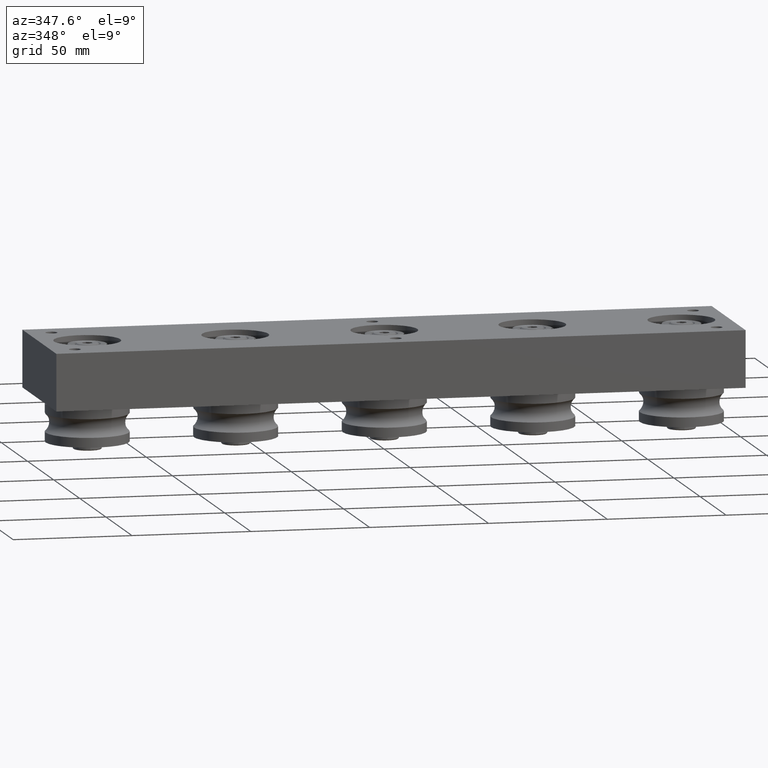
[diagram: clean part render]
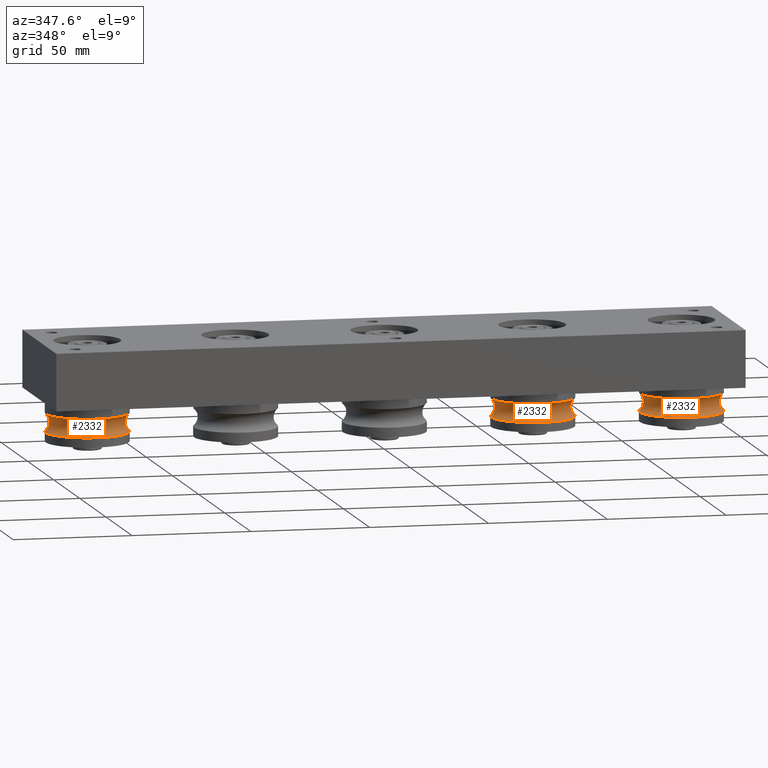
[diagram: same view with one multi-face feature highlighted, each face labeled with its STEP entity id]
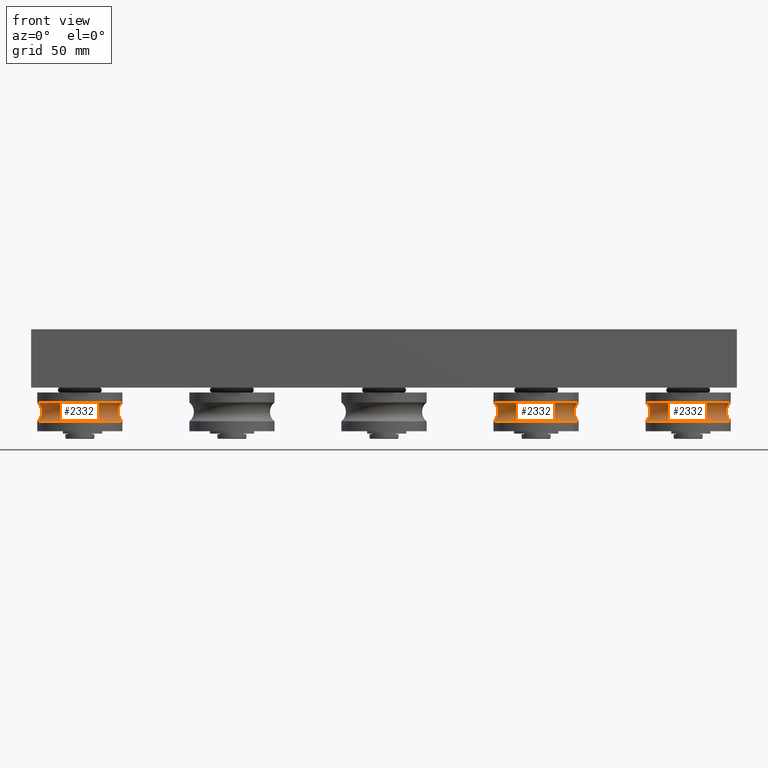
[diagram: same view with one multi-face feature highlighted, each face labeled with its STEP entity id]
A machine part, auxiliary view. The highlighted faces form ONE feature: a constant-radius fillet chain: 3 tangent blend faces with common blend radius 5 mm. The faces share edges in the B-rep.
A second angle (front view) of the same feature is appended — it is thin or edge-on in the first view.
Their STEP definitions:
[1] entity #2332 (Torus):
#99=TOROIDAL_SURFACE('',#2771,20.65,5.);
#379=FACE_OUTER_BOUND('',#568,.T.);
#568=EDGE_LOOP('',(#1910,#1911,#1912,#1913,#1914,#1915));
#994=CIRCLE('',#2753,17.5);
#996=CIRCLE('',#2755,17.5);
#998=CIRCLE('',#2758,17.5);
#999=CIRCLE('',#2759,17.5);
#1006=CIRCLE('',#2772,5.);
#1171=VERTEX_POINT('',#4030);
#1172=VERTEX_POINT('',#4031);
#1175=VERTEX_POINT('',#4040);
#1176=VERTEX_POINT('',#4042);
#1423=EDGE_CURVE('',#1171,#1172,#994,.T.);
#1426=EDGE_CURVE('',#1172,#1171,#996,.T.);
#1429=EDGE_CURVE('',#1176,#1175,#998,.T.);
#1430=EDGE_CURVE('',#1175,#1176,#999,.T.);
#1438=EDGE_CURVE('',#1172,#1176,#1006,.T.);
#1910=ORIENTED_EDGE('',*,*,#1423,.T.);
#1911=ORIENTED_EDGE('',*,*,#1438,.T.);
#1912=ORIENTED_EDGE('',*,*,#1429,.T.);
#1913=ORIENTED_EDGE('',*,*,#1430,.T.);
#1914=ORIENTED_EDGE('',*,*,#1438,.F.);
#1915=ORIENTED_EDGE('',*,*,#1426,.T.);
#2332=ADVANCED_FACE('',(#379),#99,.F.);
#2753=AXIS2_PLACEMENT_3D('',#4032,#3307,#3308);
#2755=AXIS2_PLACEMENT_3D('',#4036,#3312,#3313);
#2758=AXIS2_PLACEMENT_3D('',#4043,#3319,#3320);
#2759=AXIS2_PLACEMENT_3D('',#4044,#3321,#3322);
#2771=AXIS2_PLACEMENT_3D('',#4063,#3346,#3347);
#2772=AXIS2_PLACEMENT_3D('',#4064,#3348,#3349);
#3307=DIRECTION('center_axis',(0.,0.,1.));
#3308=DIRECTION('ref_axis',(0.,-1.,0.));
#3312=DIRECTION('center_axis',(0.,0.,1.));
#3313=DIRECTION('ref_axis',(0.,-1.,0.));
#3319=DIRECTION('center_axis',(0.,0.,-1.));
#3320=DIRECTION('ref_axis',(0.,-1.,0.));
#3321=DIRECTION('center_axis',(0.,0.,-1.));
#3322=DIRECTION('ref_axis',(0.,-1.,0.));
#3346=DIRECTION('center_axis',(4.9243499144701E-17,1.16870043086235E-16,
-1.));
#3347=DIRECTION('ref_axis',(-1.,0.,-3.46268389746637E-17));
#3348=DIRECTION('center_axis',(1.22464679914735E-16,1.,1.16870043086235E-16));
#3349=DIRECTION('ref_axis',(1.,-1.22464679914735E-16,4.32835487183297E-17));
#4030=CARTESIAN_POINT('',(-17.5,-2.14313189850787E-15,-11.8329756630708));
#4031=CARTESIAN_POINT('',(17.5,-2.79955139008714E-15,-11.8329756630708));
#4032=CARTESIAN_POINT('Origin',(0.,0.,-11.8329756630708));
#4036=CARTESIAN_POINT('Origin',(0.,0.,-11.8329756630708));
#4040=CARTESIAN_POINT('',(-17.5,-2.14313189850787E-15,-4.06702433692922));
#4042=CARTESIAN_POINT('',(17.5,-3.70715845617891E-15,-4.06702433692922));
#4043=CARTESIAN_POINT('Origin',(0.,0.,-4.06702433692922));
#4044=CARTESIAN_POINT('Origin',(0.,0.,-4.06702433692922));
#4063=CARTESIAN_POINT('Origin',(9.0205620750794E-16,-1.11022302462516E-15,
-7.95));
#4064=CARTESIAN_POINT('Origin',(20.65,-3.63911866486444E-15,-7.95));
[2] entity #2332 (Torus):
#99=TOROIDAL_SURFACE('',#2771,20.65,5.);
#379=FACE_OUTER_BOUND('',#568,.T.);
#568=EDGE_LOOP('',(#1910,#1911,#1912,#1913,#1914,#1915));
#994=CIRCLE('',#2753,17.5);
#996=CIRCLE('',#2755,17.5);
#998=CIRCLE('',#2758,17.5);
#999=CIRCLE('',#2759,17.5);
#1006=CIRCLE('',#2772,5.);
#1171=VERTEX_POINT('',#4030);
#1172=VERTEX_POINT('',#4031);
#1175=VERTEX_POINT('',#4040);
#1176=VERTEX_POINT('',#4042);
#1423=EDGE_CURVE('',#1171,#1172,#994,.T.);
#1426=EDGE_CURVE('',#1172,#1171,#996,.T.);
#1429=EDGE_CURVE('',#1176,#1175,#998,.T.);
#1430=EDGE_CURVE('',#1175,#1176,#999,.T.);
#1438=EDGE_CURVE('',#1172,#1176,#1006,.T.);
#1910=ORIENTED_EDGE('',*,*,#1423,.T.);
#1911=ORIENTED_EDGE('',*,*,#1438,.T.);
#1912=ORIENTED_EDGE('',*,*,#1429,.T.);
#1913=ORIENTED_EDGE('',*,*,#1430,.T.);
#1914=ORIENTED_EDGE('',*,*,#1438,.F.);
#1915=ORIENTED_EDGE('',*,*,#1426,.T.);
#2332=ADVANCED_FACE('',(#379),#99,.F.);
#2753=AXIS2_PLACEMENT_3D('',#4032,#3307,#3308);
#2755=AXIS2_PLACEMENT_3D('',#4036,#3312,#3313);
#2758=AXIS2_PLACEMENT_3D('',#4043,#3319,#3320);
#2759=AXIS2_PLACEMENT_3D('',#4044,#3321,#3322);
#2771=AXIS2_PLACEMENT_3D('',#4063,#3346,#3347);
#2772=AXIS2_PLACEMENT_3D('',#4064,#3348,#3349);
#3307=DIRECTION('center_axis',(0.,0.,1.));
#3308=DIRECTION('ref_axis',(0.,-1.,0.));
#3312=DIRECTION('center_axis',(0.,0.,1.));
#3313=DIRECTION('ref_axis',(0.,-1.,0.));
#3319=DIRECTION('center_axis',(0.,0.,-1.));
#3320=DIRECTION('ref_axis',(0.,-1.,0.));
#3321=DIRECTION('center_axis',(0.,0.,-1.));
#3322=DIRECTION('ref_axis',(0.,-1.,0.));
#3346=DIRECTION('center_axis',(4.9243499144701E-17,1.16870043086235E-16,
-1.));
#3347=DIRECTION('ref_axis',(-1.,0.,-3.46268389746637E-17));
#3348=DIRECTION('center_axis',(1.22464679914735E-16,1.,1.16870043086235E-16));
#3349=DIRECTION('ref_axis',(1.,-1.22464679914735E-16,4.32835487183297E-17));
#4030=CARTESIAN_POINT('',(-17.5,-2.14313189850787E-15,-11.8329756630708));
#4031=CARTESIAN_POINT('',(17.5,-2.79955139008714E-15,-11.8329756630708));
#4032=CARTESIAN_POINT('Origin',(0.,0.,-11.8329756630708));
#4036=CARTESIAN_POINT('Origin',(0.,0.,-11.8329756630708));
#4040=CARTESIAN_POINT('',(-17.5,-2.14313189850787E-15,-4.06702433692922));
#4042=CARTESIAN_POINT('',(17.5,-3.70715845617891E-15,-4.06702433692922));
#4043=CARTESIAN_POINT('Origin',(0.,0.,-4.06702433692922));
#4044=CARTESIAN_POINT('Origin',(0.,0.,-4.06702433692922));
#4063=CARTESIAN_POINT('Origin',(9.0205620750794E-16,-1.11022302462516E-15,
-7.95));
#4064=CARTESIAN_POINT('Origin',(20.65,-3.63911866486444E-15,-7.95));
[3] entity #2332 (Torus):
#99=TOROIDAL_SURFACE('',#2771,20.65,5.);
#379=FACE_OUTER_BOUND('',#568,.T.);
#568=EDGE_LOOP('',(#1910,#1911,#1912,#1913,#1914,#1915));
#994=CIRCLE('',#2753,17.5);
#996=CIRCLE('',#2755,17.5);
#998=CIRCLE('',#2758,17.5);
#999=CIRCLE('',#2759,17.5);
#1006=CIRCLE('',#2772,5.);
#1171=VERTEX_POINT('',#4030);
#1172=VERTEX_POINT('',#4031);
#1175=VERTEX_POINT('',#4040);
#1176=VERTEX_POINT('',#4042);
#1423=EDGE_CURVE('',#1171,#1172,#994,.T.);
#1426=EDGE_CURVE('',#1172,#1171,#996,.T.);
#1429=EDGE_CURVE('',#1176,#1175,#998,.T.);
#1430=EDGE_CURVE('',#1175,#1176,#999,.T.);
#1438=EDGE_CURVE('',#1172,#1176,#1006,.T.);
#1910=ORIENTED_EDGE('',*,*,#1423,.T.);
#1911=ORIENTED_EDGE('',*,*,#1438,.T.);
#1912=ORIENTED_EDGE('',*,*,#1429,.T.);
#1913=ORIENTED_EDGE('',*,*,#1430,.T.);
#1914=ORIENTED_EDGE('',*,*,#1438,.F.);
#1915=ORIENTED_EDGE('',*,*,#1426,.T.);
#2332=ADVANCED_FACE('',(#379),#99,.F.);
#2753=AXIS2_PLACEMENT_3D('',#4032,#3307,#3308);
#2755=AXIS2_PLACEMENT_3D('',#4036,#3312,#3313);
#2758=AXIS2_PLACEMENT_3D('',#4043,#3319,#3320);
#2759=AXIS2_PLACEMENT_3D('',#4044,#3321,#3322);
#2771=AXIS2_PLACEMENT_3D('',#4063,#3346,#3347);
#2772=AXIS2_PLACEMENT_3D('',#4064,#3348,#3349);
#3307=DIRECTION('center_axis',(0.,0.,1.));
#3308=DIRECTION('ref_axis',(0.,-1.,0.));
#3312=DIRECTION('center_axis',(0.,0.,1.));
#3313=DIRECTION('ref_axis',(0.,-1.,0.));
#3319=DIRECTION('center_axis',(0.,0.,-1.));
#3320=DIRECTION('ref_axis',(0.,-1.,0.));
#3321=DIRECTION('center_axis',(0.,0.,-1.));
#3322=DIRECTION('ref_axis',(0.,-1.,0.));
#3346=DIRECTION('center_axis',(4.9243499144701E-17,1.16870043086235E-16,
-1.));
#3347=DIRECTION('ref_axis',(-1.,0.,-3.46268389746637E-17));
#3348=DIRECTION('center_axis',(1.22464679914735E-16,1.,1.16870043086235E-16));
#3349=DIRECTION('ref_axis',(1.,-1.22464679914735E-16,4.32835487183297E-17));
#4030=CARTESIAN_POINT('',(-17.5,-2.14313189850787E-15,-11.8329756630708));
#4031=CARTESIAN_POINT('',(17.5,-2.79955139008714E-15,-11.8329756630708));
#4032=CARTESIAN_POINT('Origin',(0.,0.,-11.8329756630708));
#4036=CARTESIAN_POINT('Origin',(0.,0.,-11.8329756630708));
#4040=CARTESIAN_POINT('',(-17.5,-2.14313189850787E-15,-4.06702433692922));
#4042=CARTESIAN_POINT('',(17.5,-3.70715845617891E-15,-4.06702433692922));
#4043=CARTESIAN_POINT('Origin',(0.,0.,-4.06702433692922));
#4044=CARTESIAN_POINT('Origin',(0.,0.,-4.06702433692922));
#4063=CARTESIAN_POINT('Origin',(9.0205620750794E-16,-1.11022302462516E-15,
-7.95));
#4064=CARTESIAN_POINT('Origin',(20.65,-3.63911866486444E-15,-7.95));